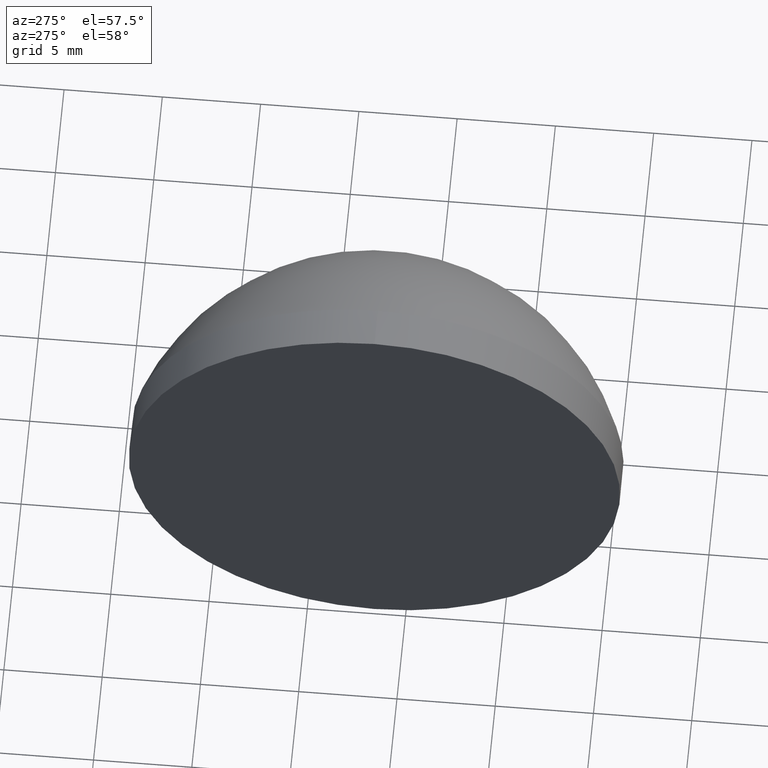
[diagram: clean part render]
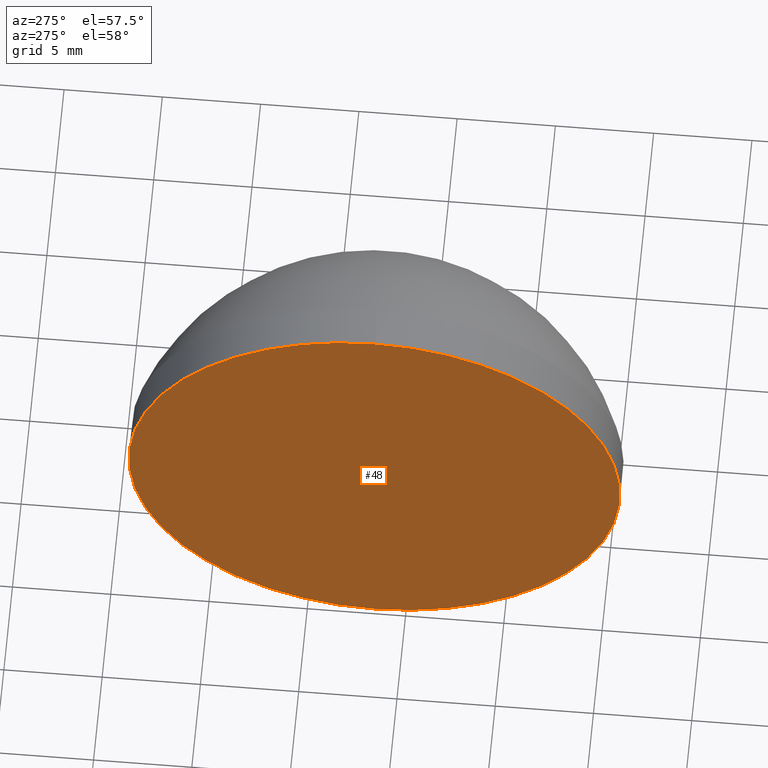
[diagram: same view with one face highlighted and labeled with its STEP entity id]
A machine part, auxiliary view. The second image highlights one B-rep face of the part: STEP entity #48.
In plain terms, the highlighted planar face has unit normal (1, 0, 0).
Its self-contained STEP definition (entity closure, byte-faithful):
#5 = CARTESIAN_POINT ( 'NONE',  ( 419.9278866193999400, 66.57798510397458400, 0.0000000000000000000 ) ) ;
#24 = CARTESIAN_POINT ( 'NONE',  ( 419.9278866193999400, 66.57798510397458400, -12.49999999999999600 ) ) ;
#28 = AXIS2_PLACEMENT_3D ( 'NONE', #149, #54, #167 ) ;
#30 = CIRCLE ( 'NONE', #28, 12.49999999999999600 ) ;
#46 = DIRECTION ( 'NONE',  ( -1.000000000000000000, -0.0000000000000000000, -0.0000000000000000000 ) ) ;
#48 = ADVANCED_FACE ( 'NONE', ( #155 ), #94, .F. ) ;
#49 = EDGE_CURVE ( 'NONE', #115, #132, #56, .T. ) ;
#54 = DIRECTION ( 'NONE',  ( -1.000000000000000000, -0.0000000000000000000, -0.0000000000000000000 ) ) ;
#56 = CIRCLE ( 'NONE', #62, 12.49999999999999600 ) ;
#62 = AXIS2_PLACEMENT_3D ( 'NONE', #5, #46, #144 ) ;
#72 = ORIENTED_EDGE ( 'NONE', *, *, #49, .T. ) ;
#94 = PLANE ( 'NONE',  #164 ) ;
#96 = ORIENTED_EDGE ( 'NONE', *, *, #146, .T. ) ;
#103 = EDGE_LOOP ( 'NONE', ( #72, #96 ) ) ;
#107 = DIRECTION ( 'NONE',  ( 0.0000000000000000000, 0.0000000000000000000, -1.000000000000000000 ) ) ;
#115 = VERTEX_POINT ( 'NONE', #178 ) ;
#120 = DIRECTION ( 'NONE',  ( 1.000000000000000000, 0.0000000000000000000, 0.0000000000000000000 ) ) ;
#132 = VERTEX_POINT ( 'NONE', #24 ) ;
#144 = DIRECTION ( 'NONE',  ( 0.0000000000000000000, 0.0000000000000000000, 1.000000000000000000 ) ) ;
#146 = EDGE_CURVE ( 'NONE', #132, #115, #30, .T. ) ;
#149 = CARTESIAN_POINT ( 'NONE',  ( 419.9278866193999400, 66.57798510397458400, 0.0000000000000000000 ) ) ;
#155 = FACE_OUTER_BOUND ( 'NONE', #103, .T. ) ;
#164 = AXIS2_PLACEMENT_3D ( 'NONE', #177, #120, #107 ) ;
#167 = DIRECTION ( 'NONE',  ( 0.0000000000000000000, 0.0000000000000000000, 1.000000000000000000 ) ) ;
#177 = CARTESIAN_POINT ( 'NONE',  ( 419.9278866193999400, 66.57798510397458400, 0.0000000000000000000 ) ) ;
#178 = CARTESIAN_POINT ( 'NONE',  ( 419.9278866193999400, 66.57798510397458400, 12.49999999999999600 ) ) ;